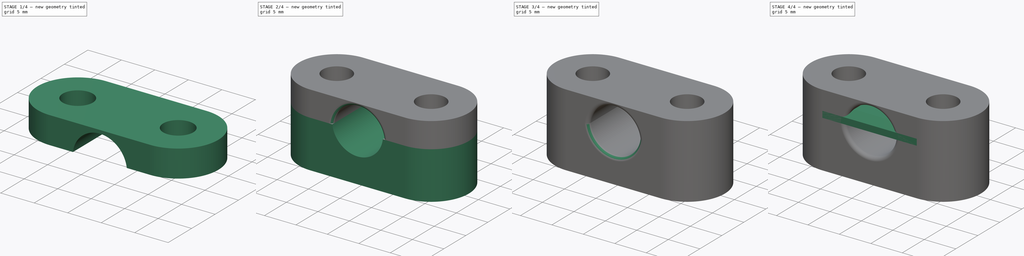
[diagram: build sequence overview — one tinted view per stage of 4, left to right]
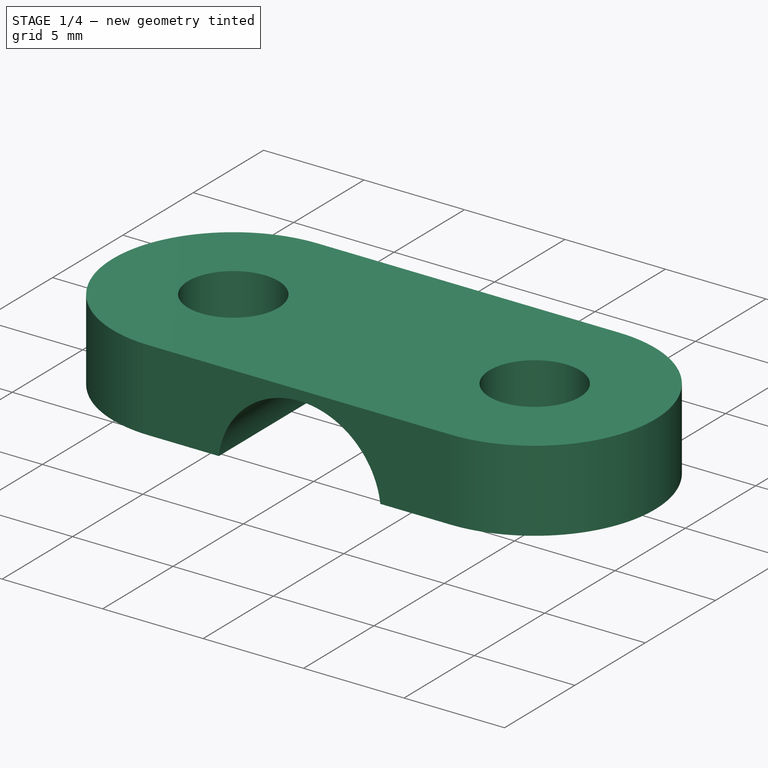
[diagram: stage 1 of 4 — iso view after this stage's code; geometry added in this stage tinted green]
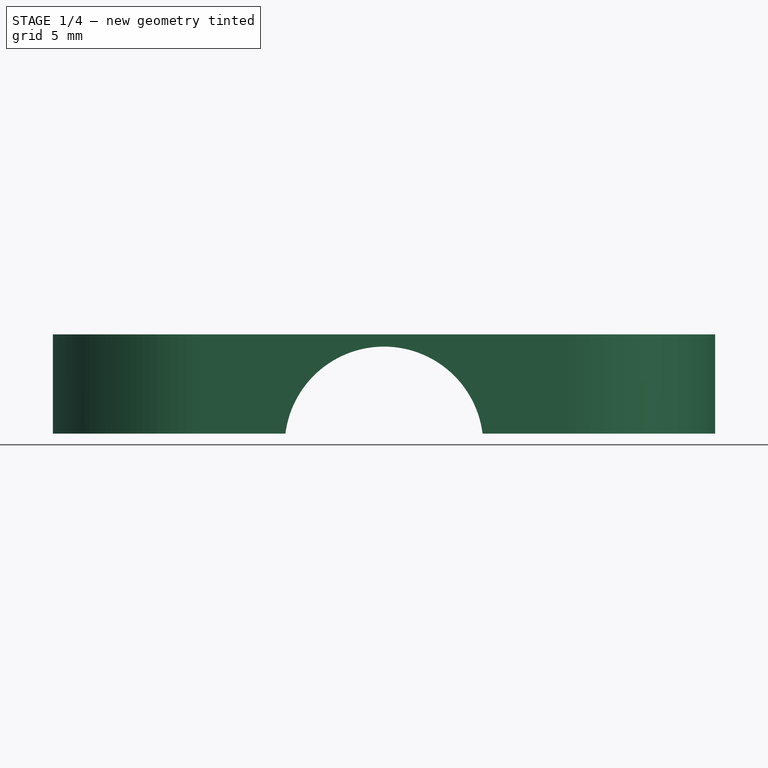
[diagram: stage 1 of 4 — front view after this stage's code; geometry added in this stage tinted green]
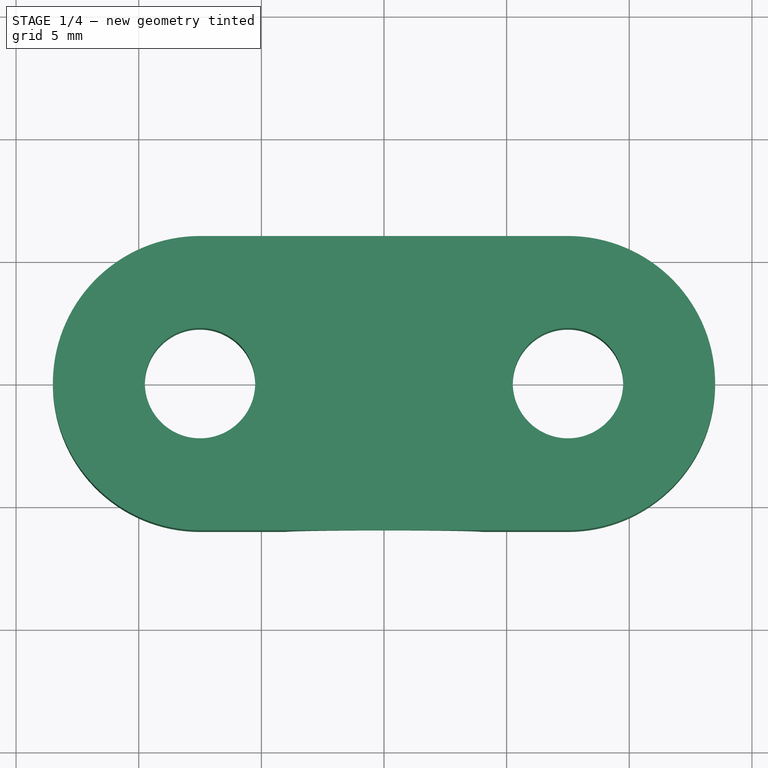
[diagram: stage 1 of 4 — top view after this stage's code; geometry added in this stage tinted green]
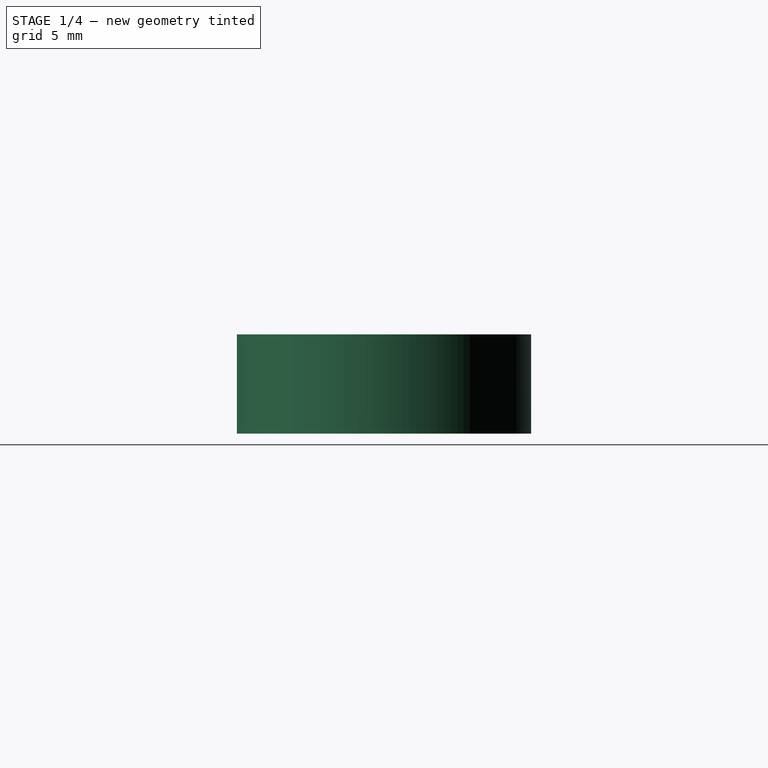
[diagram: stage 1 of 4 — right view after this stage's code; geometry added in this stage tinted green]
FCSTD DOCUMENT  (FreeCAD 0.20R29410 (Git))
Label: Rack Bolt Mount
License: All rights reserved
LicenseURL: http://en.wikipedia.org/wiki/All_rights_reserved
objects: Sketcher::SketchObject×9, PartDesign::Pad×3, PartDesign::Hole×3, PartDesign::Pocket×3, PartDesign::Body×3, Spreadsheet::Sheet×2, PartDesign::Fillet×2, PartDesign::Chamfer×1, App::MeasureDistance×1
note: 36 computed .brp shape members not serialized (recipe doc carries the construction recipe); baked Part::Feature solids carry a one-line shape summary decoded from their .brp

FEATURE [Sketcher::SketchObject] Sketch002
  FullyConstrained = true
  MapMode = 5
  Support = -> [XY_Plane001]
  expr: Constraints[7] = <<dims>>.width
  expr: Constraints[8] = <<dims>>.bolt_spacing
  sketch-geometry (4):
    g0: ArcOfCircle CenterX=-7.5 CenterY=0 CenterZ=0 NormalX=0 NormalY=0 NormalZ=1 AngleXU=0 Radius=6 StartAngle=1.5708 EndAngle=4.71239
    g1: ArcOfCircle CenterX=7.5 CenterY=0 CenterZ=0 NormalX=0 NormalY=0 NormalZ=1 AngleXU=0 Radius=6 StartAngle=4.71239 EndAngle=7.85398
    g2: LineSegment StartX=-7.5 StartY=-6 StartZ=0 EndX=7.5 EndY=-6 EndZ=0
    g3: LineSegment StartX=7.5 StartY=6 StartZ=0 EndX=-7.5 EndY=6 EndZ=0
  constraints (9):
    c: Tangent(g0,g2) = -1.5708
    c: Tangent(g2,g1) = -1.5708
    c: Tangent(g1,g3) = -1.5708
    c: Tangent(g3,g0) = -1.5708
    c: Equal(g0,g1)
    c: PointOnObject(g0,g-1)
    c: Symmetric(g0,g1,g-2)
    c: DistanceY(g0,g0) = 12
    c: DistanceX(g3,g3) = 15
FEATURE [PartDesign::Pad] Pad001
  AlongSketchNormal = false
  Direction = (0,0,1)
  Length = 4.05
  Length2 = 100
  Profile = -> Sketch002
  Type = 0
  expr: Length = <<dims>>.tube_od / 2 + <<dims>>.middle__min_t - <<dims>>.clamp_gap / 2
FEATURE [Sketcher::SketchObject] Sketch003
  FullyConstrained = true
  MapMode = 5
  Placement = pos=(0,0,0) rot=(1,0,0;1.5708rad)
  Support = -> [XZ_Plane001]
  expr: Constraints[1] = -<<dims>>.clamp_gap / 2
  expr: Constraints[2] = <<dims>>.tube_od
  sketch-geometry (1):
    g0: Circle CenterX=0 CenterY=-0.5 CenterZ=0 NormalX=0 NormalY=0 NormalZ=1 AngleXU=0 Radius=4.05
  constraints (3):
    c: PointOnObject(g0,g-2)
    c: DistanceY(g0) = -0.5
    c: Diameter(g0) = 8.1
FEATURE [PartDesign::Pocket] Pocket
  BaseFeature = -> Pad001
  Direction = (1,1,1)
  Length = 5
  Length2 = 100
  Midplane = true
  Profile = -> Sketch003
  Type = 1
FEATURE [Sketcher::SketchObject] Sketch004
  FullyConstrained = false
  MapMode = 5
  Placement = pos=(0,0,4.05) rot=(0,0,1;0rad)
  Support = -> [Pocket]
  expr: Constraints[1] = <<dims>>.bolt_spacing
  sketch-geometry (2):
    g0: Circle CenterX=-7.5 CenterY=0 CenterZ=0 NormalX=0 NormalY=0 NormalZ=1 AngleXU=0 Radius=7.38141
    g1: Circle CenterX=7.5 CenterY=0 CenterZ=0 NormalX=0 NormalY=0 NormalZ=1 AngleXU=0 Radius=5.03095
  constraints (3):
    c: PointOnObject(g0,g-1)
    c: DistanceX(g0,g1) = 15
    c: Symmetric(g0,g1,g-2)
FEATURE [PartDesign::Hole] Hole001
  BaseFeature = -> Pocket
  CustomThreadClearance = 0
  Depth = 25
  DepthType = 0
  Diameter = 4.5
  DrillForDepth = false
  DrillPoint = 1
  DrillPointAngle = 118
  HoleCutCountersinkAngle = 90
  HoleCutCustomValues = false
  HoleCutDepth = 0
  HoleCutDiameter = 6.1
  HoleCutType = 0
  ModelThread = false
  Profile = -> Sketch004
  Tapered = false
  TaperedAngle = 90
  ThreadClass = 0
  ThreadDepth = 25
  ThreadDepthType = 0
  ThreadDirection = 0
  ThreadFit = 0
  ThreadSize = 11
  ThreadType = 1
  Threaded = false
  UseCustomThreadClearance = false
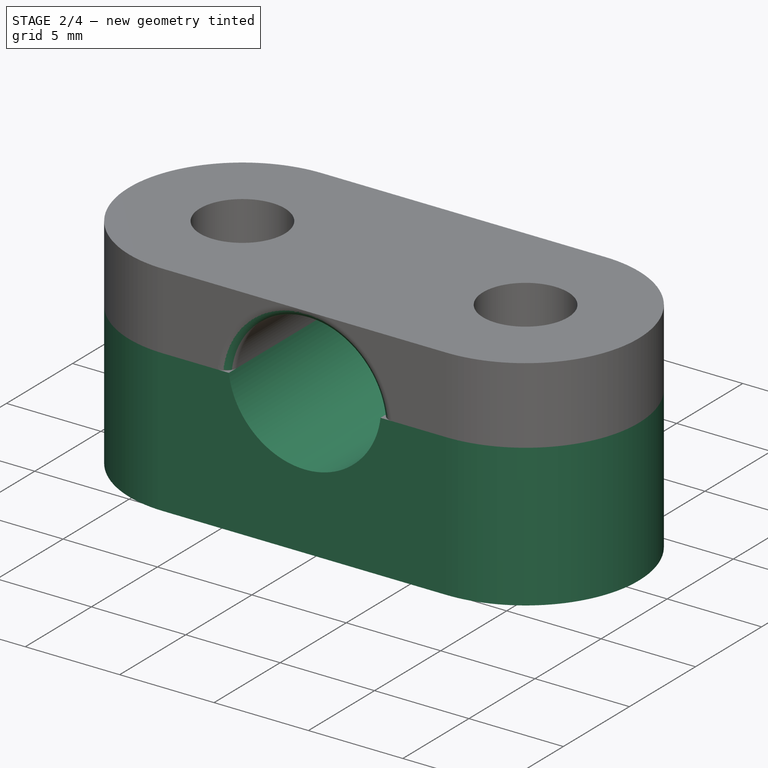
[diagram: stage 2 of 4 — iso view after this stage's code; geometry added in this stage tinted green]
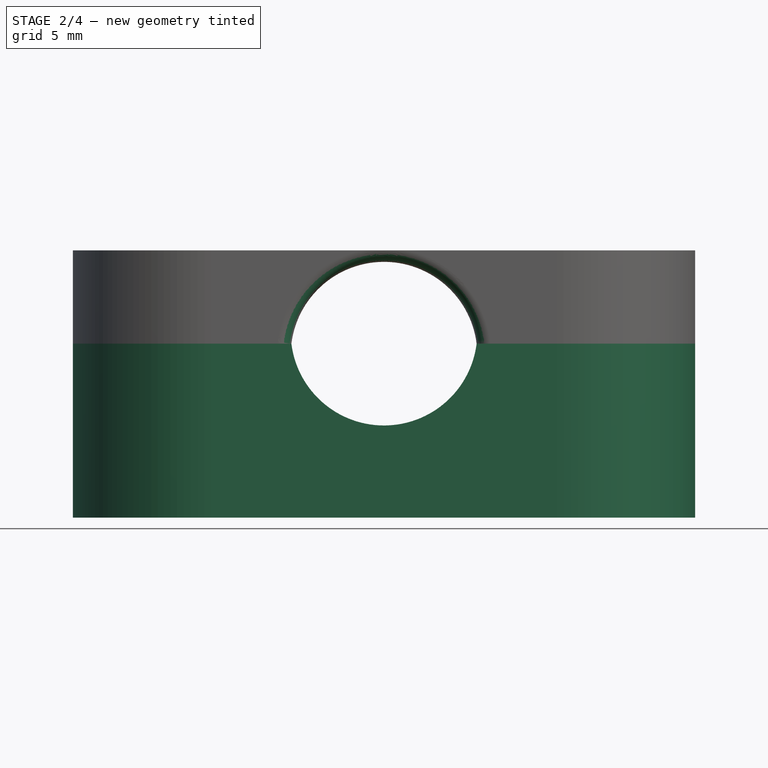
[diagram: stage 2 of 4 — front view after this stage's code; geometry added in this stage tinted green]
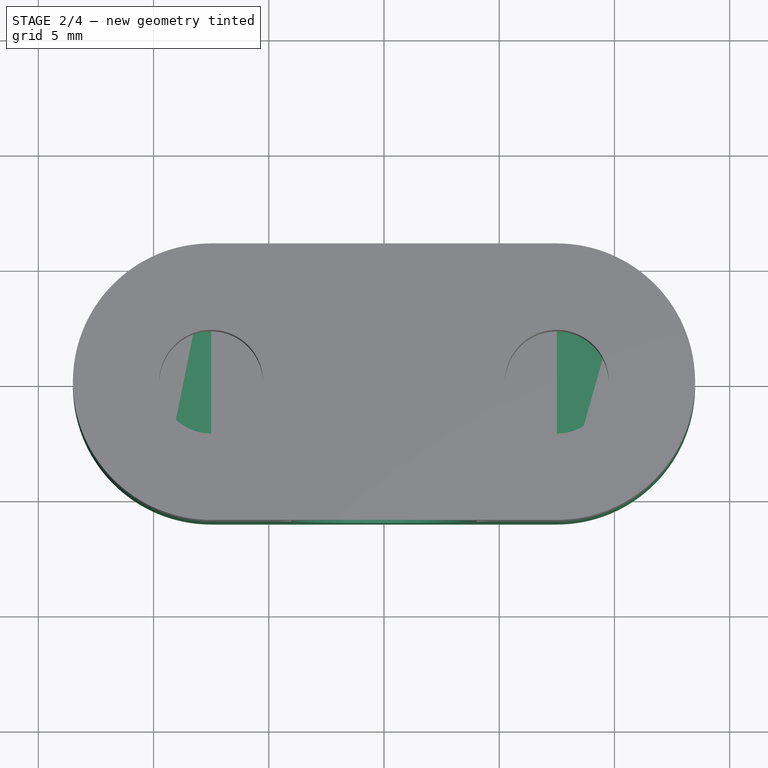
[diagram: stage 2 of 4 — top view after this stage's code; geometry added in this stage tinted green]
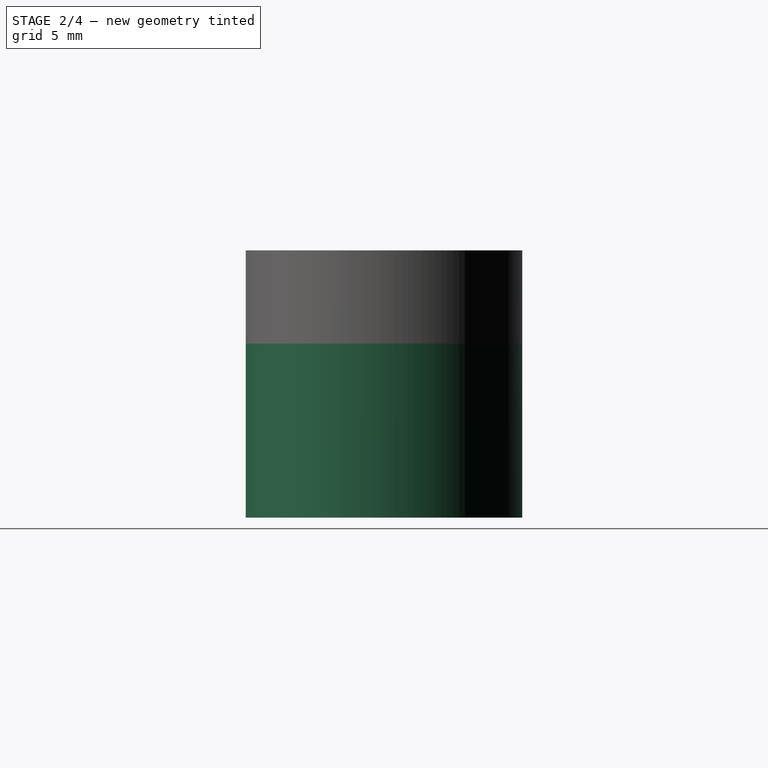
[diagram: stage 2 of 4 — right view after this stage's code; geometry added in this stage tinted green]
FEATURE [Sketcher::SketchObject] Sketch005
  FullyConstrained = true
  MapMode = 5
  Support = -> [XY_Plane002]
  expr: Constraints[7] = <<dims>>.width
  expr: Constraints[8] = <<dims>>.bolt_spacing
  sketch-geometry (4):
    g0: ArcOfCircle CenterX=-7.5 CenterY=0 CenterZ=0 NormalX=0 NormalY=0 NormalZ=1 AngleXU=0 Radius=6 StartAngle=1.5708 EndAngle=4.71239
    g1: ArcOfCircle CenterX=7.5 CenterY=0 CenterZ=0 NormalX=0 NormalY=0 NormalZ=1 AngleXU=0 Radius=6 StartAngle=4.71239 EndAngle=7.85398
    g2: LineSegment StartX=-7.5 StartY=-6 StartZ=0 EndX=7.5 EndY=-6 EndZ=0
    g3: LineSegment StartX=7.5 StartY=6 StartZ=0 EndX=-7.5 EndY=6 EndZ=0
  constraints (9):
    c: Tangent(g0,g2) = -1.5708
    c: Tangent(g2,g1) = -1.5708
    c: Tangent(g1,g3) = -1.5708
    c: Tangent(g3,g0) = -1.5708
    c: Equal(g0,g1)
    c: PointOnObject(g0,g-1)
    c: Symmetric(g0,g1,g-2)
    c: DistanceY(g0,g0) = 12
    c: DistanceX(g3,g3) = 15
FEATURE [PartDesign::Pad] Pad002
  AlongSketchNormal = false
  Direction = (0,0,1)
  Length = 7.55
  Length2 = 100
  Profile = -> Sketch005
  Reversed = true
  Type = 0
  expr: Length = <<dims>>.tube_od / 2 + <<dims>>.lowest__min_t - <<dims>>.clamp_gap / 2
FEATURE [Sketcher::SketchObject] Sketch006
  FullyConstrained = true
  MapMode = 5
  Placement = pos=(0,0,0) rot=(1,0,0;1.5708rad)
  Support = -> [XZ_Plane002]
  expr: Constraints[1] = <<dims>>.clamp_gap / 2
  expr: Constraints[2] = <<dims>>.tube_od
  sketch-geometry (1):
    g0: Circle CenterX=0 CenterY=0.5 CenterZ=0 NormalX=0 NormalY=0 NormalZ=1 AngleXU=0 Radius=4.05
  constraints (3):
    c: PointOnObject(g0,g-2)
    c: DistanceY(g0) = 0.5
    c: Diameter(g0) = 8.1
FEATURE [PartDesign::Pocket] Pocket001
  BaseFeature = -> Pad002
  Direction = (1,1,1)
  Length = 5
  Length2 = 100
  Midplane = true
  Profile = -> Sketch006
  Type = 1
FEATURE [PartDesign::Body] Body002  label="Lower"
  Group = -> [Sketch005,Pad002,Sketch006,Pocket001,Sketch007,Hole002,Sketch008,Pocket002,Fillet]
  Origin = -> Origin002
  Placement = pos=(0,0,-0.5) rot=(0,0,1;0rad)
  Tip = -> Fillet
  expr: .Placement.Base.z = <<dims>>.clamp_gap / 2 * -1
FEATURE [PartDesign::Fillet] Fillet001
  Base = -> Hole001 [Edge6,Edge11]
  BaseFeature = -> Hole001
  Radius = 0.6
  SupportTransform = false
  UseAllEdges = false
FEATURE [PartDesign::Body] Body001  label="Middle"
  Group = -> [Sketch002,Pad001,Sketch003,Pocket,Sketch004,Hole001,Fillet001]
  Origin = -> Origin001
  Placement = pos=(0,0,0.5) rot=(0,0,1;0rad)
  Tip = -> Fillet001
  expr: .Placement.Base.z = <<dims>>.clamp_gap / 2
FEATURE [App::MeasureDistance] Distance  label="Distance: 17.60 mm"
  Distance = 17.6009
  P1 = (-7.45451,-5.10935,9.52815)
  P2 = (-7.37467,-6,-8.05)
FEATURE [Spreadsheet::Sheet] _PARTINFO_  label="#PARTINFO#"
  cells = A1=IDENTNO; A2=DESCRIPTION; B2=Rack Bolt Mount; A3=SUPPLIER; A4=SUPP.IDENTNO; A5=SUPP.DESCRIPTION; A6=(FILENAME)
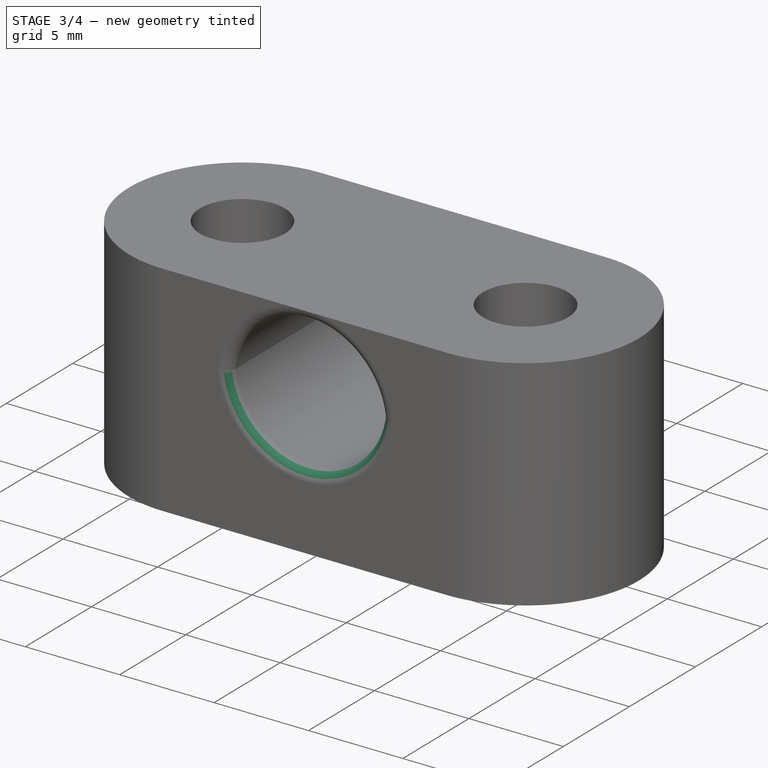
[diagram: stage 3 of 4 — iso view after this stage's code; geometry added in this stage tinted green]
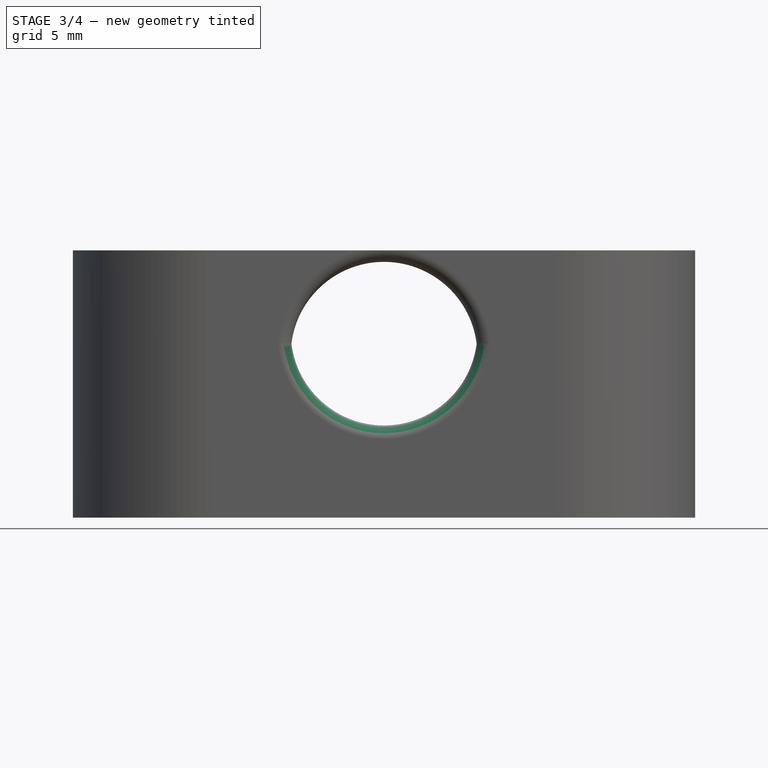
[diagram: stage 3 of 4 — front view after this stage's code; geometry added in this stage tinted green]
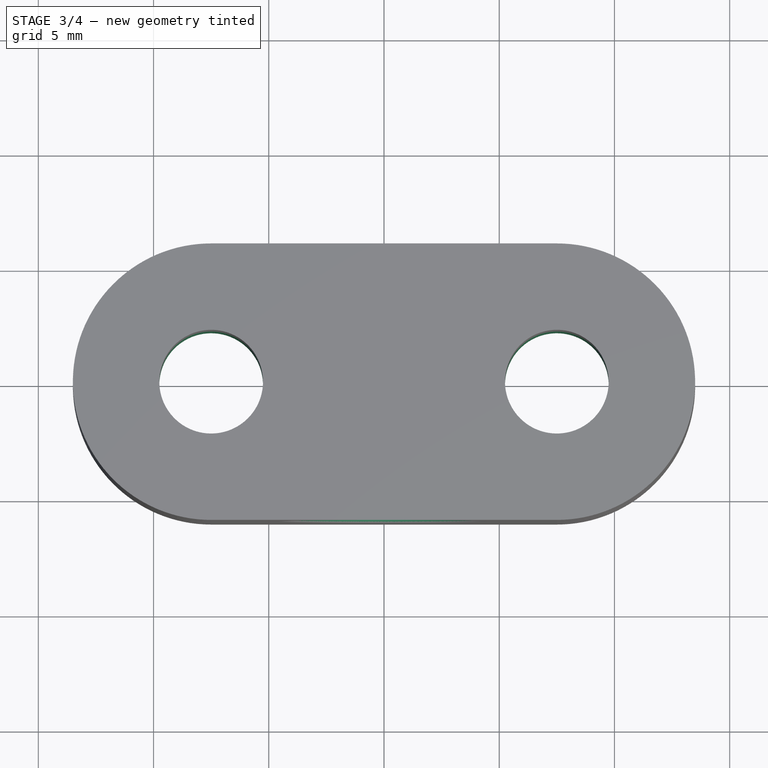
[diagram: stage 3 of 4 — top view after this stage's code; geometry added in this stage tinted green]
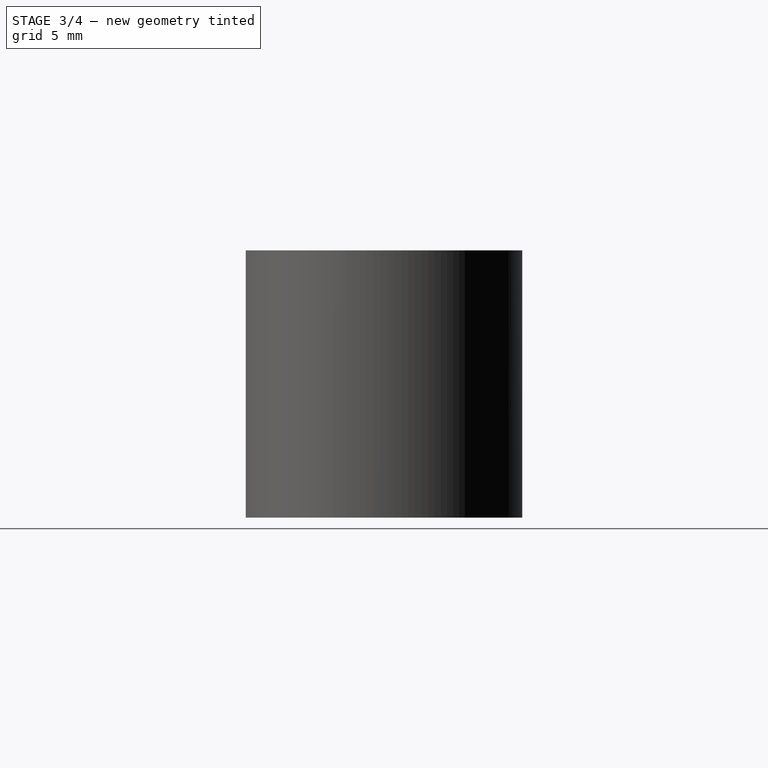
[diagram: stage 3 of 4 — right view after this stage's code; geometry added in this stage tinted green]
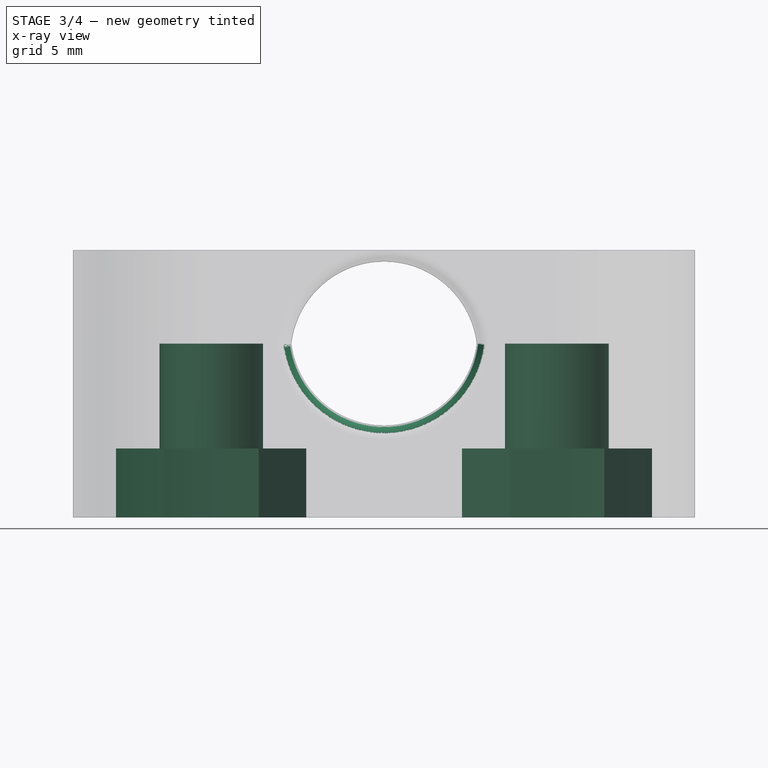
[diagram: stage 3 of 4 — x-ray composite at the front view; earlier geometry ghosted, this stage's added geometry solid]
FEATURE [Sketcher::SketchObject] Sketch007
  FullyConstrained = false
  MapMode = 5
  Placement = pos=(0,0,-7.55) rot=(1,0,0;3.14159rad)
  Support = -> [Pocket001]
  expr: Constraints[1] = <<dims>>.bolt_spacing
  sketch-geometry (2):
    g0: Circle CenterX=-7.5 CenterY=0 CenterZ=0 NormalX=0 NormalY=0 NormalZ=1 AngleXU=0 Radius=7.38141
    g1: Circle CenterX=7.5 CenterY=0 CenterZ=0 NormalX=0 NormalY=0 NormalZ=1 AngleXU=0 Radius=5.03095
  constraints (3):
    c: PointOnObject(g0,g-1)
    c: DistanceX(g0,g1) = 15
    c: Symmetric(g0,g1,g-2)
FEATURE [PartDesign::Hole] Hole002
  BaseFeature = -> Pocket001
  CustomThreadClearance = 0
  Depth = 25
  DepthType = 0
  Diameter = 4.5
  DrillForDepth = false
  DrillPoint = 1
  DrillPointAngle = 118
  HoleCutCountersinkAngle = 90
  HoleCutCustomValues = false
  HoleCutDepth = 0
  HoleCutDiameter = 6.1
  HoleCutType = 0
  ModelThread = false
  Profile = -> Sketch007
  Tapered = false
  TaperedAngle = 90
  ThreadClass = 0
  ThreadDepth = 25
  ThreadDepthType = 0
  ThreadDirection = 0
  ThreadFit = 0
  ThreadSize = 11
  ThreadType = 1
  Threaded = false
  UseCustomThreadClearance = false
FEATURE [Sketcher::SketchObject] Sketch008
  FullyConstrained = true
  MapMode = 5
  Placement = pos=(0,0,-7.55) rot=(1,0,0;3.14159rad)
  Support = -> [Hole002]
  expr: Constraints[36] = <<dims>>.bolt_spacing
  expr: Constraints[40] = <<dims>>.hex_width
  sketch-geometry (14):
    g0: LineSegment StartX=-5.43597 StartY=-3.575 StartZ=0 EndX=-3.37195 EndY=-2.4389e-12 EndZ=0
    g1: LineSegment StartX=-3.37195 StartY=-2.4387e-12 StartZ=0 EndX=-5.43597 EndY=3.575 EndZ=0
    g2: LineSegment StartX=-5.43597 StartY=3.575 StartZ=0 EndX=-9.56403 EndY=3.575 EndZ=0
    g3: LineSegment StartX=-9.56403 StartY=3.575 StartZ=0 EndX=-11.6281 EndY=8.114e-13 EndZ=0
    g4: LineSegment StartX=-11.6281 StartY=8.116e-13 StartZ=0 EndX=-9.56403 EndY=-3.575 EndZ=0
    g5: LineSegment StartX=-9.56403 StartY=-3.575 StartZ=0 EndX=-5.43597 EndY=-3.575 EndZ=0
    g6: Circle CenterX=-7.5 CenterY=0 CenterZ=0 NormalX=0 NormalY=0 NormalZ=1 AngleXU=0 Radius=4.12805
    g7: LineSegment StartX=9.56403 StartY=-3.575 StartZ=0 EndX=11.6281 EndY=-2.5007e-12 EndZ=0
    g8: LineSegment StartX=11.6281 StartY=-2.5006e-12 StartZ=0 EndX=9.56403 EndY=3.575 EndZ=0
    g9: LineSegment StartX=9.56403 StartY=3.575 StartZ=0 EndX=5.43597 EndY=3.575 EndZ=0
    g10: LineSegment StartX=5.43597 StartY=3.575 StartZ=0 EndX=3.37195 EndY=8.336e-13 EndZ=0
    g11: LineSegment StartX=3.37195 StartY=8.336e-13 StartZ=0 EndX=5.43597 EndY=-3.575 EndZ=0
    g12: LineSegment StartX=5.43597 StartY=-3.575 StartZ=0 EndX=9.56403 EndY=-3.575 EndZ=0
    g13: Circle CenterX=7.5 CenterY=0 CenterZ=0 NormalX=0 NormalY=0 NormalZ=1 AngleXU=0 Radius=4.12805
  constraints (33):
    c: Coincident(g0,g1)
    c: Coincident(g1,g2)
    c: Coincident(g2,g3)
    c: Coincident(g3,g4)
    c: Coincident(g4,g5)
    c: Coincident(g5,g0)
    c: Equal(g0, g1-g5) x5
    c: PointOnObject(g0,g6)
    c: PointOnObject(g1,g6)
    c: PointOnObject(g2,g6)
    c: PointOnObject(g3,g6)
    c: PointOnObject(g4,g6)
    c: PointOnObject(g5,g6)
    c: PointOnObject(g6,g-1)
    c: Coincident(g7,g8)
    c: Coincident(g8,g9)
    c: Coincident(g9,g10)
    c: Coincident(g10,g11)
    c: Coincident(g11,g12)
    c: Coincident(g12,g7)
    c: Equal(g7, g8-g12) x5
    c: PointOnObject(g7,g13)
    c: PointOnObject(g8,g13)
    c: PointOnObject(g9,g13)
    c: PointOnObject(g10,g13)
    c: PointOnObject(g11,g13)
    c: PointOnObject(g12,g13)
    c: Symmetric(g6,g13,g-2)
    c: DistanceX(g6,g13) = 15
    c: Horizontal(g2)
    c: Horizontal(g9)
    c: Equal(g13,g6)
    c: DistanceY(g4,g2) = 7.15
FEATURE [PartDesign::Pocket] Pocket002
  BaseFeature = -> Hole002
  Direction = (1,1,1)
  Length = 3
  Length2 = 100
  Profile = -> Sketch008
  Type = 0
  expr: Length = <<dims>>.hex_depth
FEATURE [PartDesign::Body] Body  label="Top"
  Group = -> [Sketch,Pad,Sketch001,Hole,Chamfer]
  Origin = -> Origin
  Placement = pos=(0,0,6.1375) rot=(0,0,1;0rad)
  Tip = -> Chamfer
  expr: .Placement.Base.z = <<dims>>.tube_od / 2 + <<dims>>.middle__min_t + <<dims>>.panel_t
FEATURE [PartDesign::Fillet] Fillet
  Base = -> Pocket002 [Edge6,Edge11]
  BaseFeature = -> Pocket002
  Radius = 0.6
  SupportTransform = false
  UseAllEdges = false
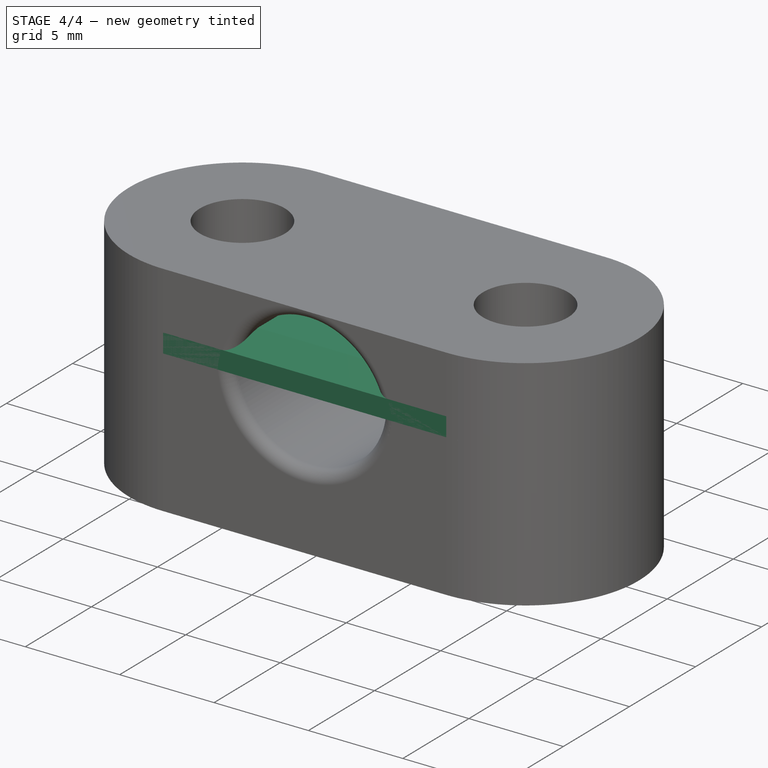
[diagram: stage 4 of 4 — iso view after this stage's code; geometry added in this stage tinted green]
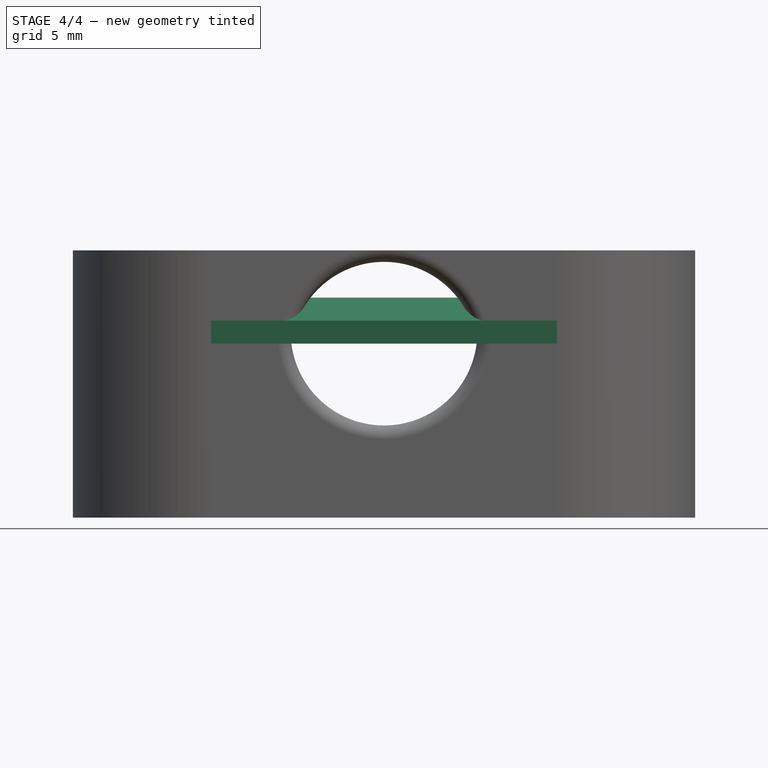
[diagram: stage 4 of 4 — front view after this stage's code; geometry added in this stage tinted green]
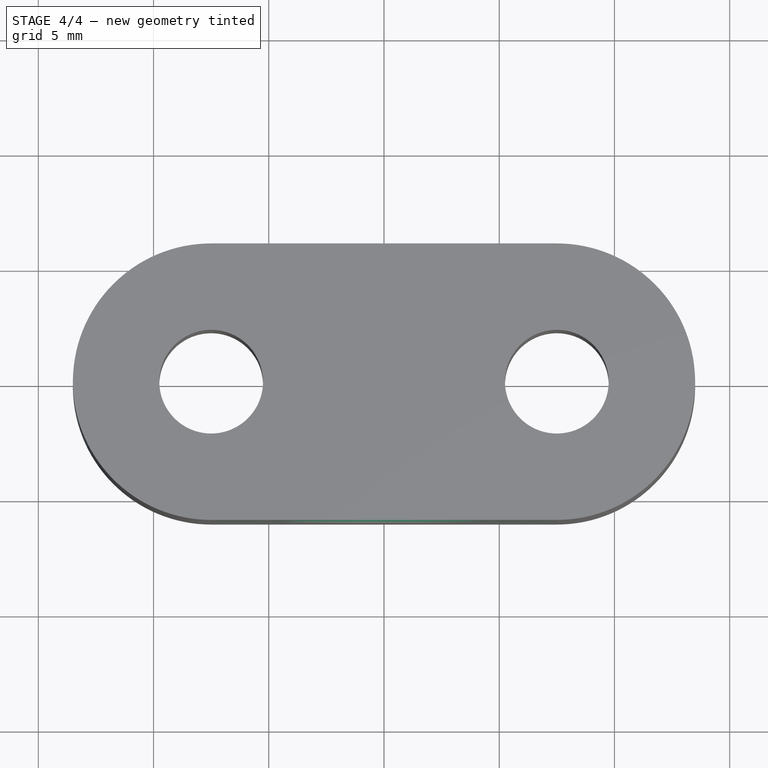
[diagram: stage 4 of 4 — top view after this stage's code; geometry added in this stage tinted green]
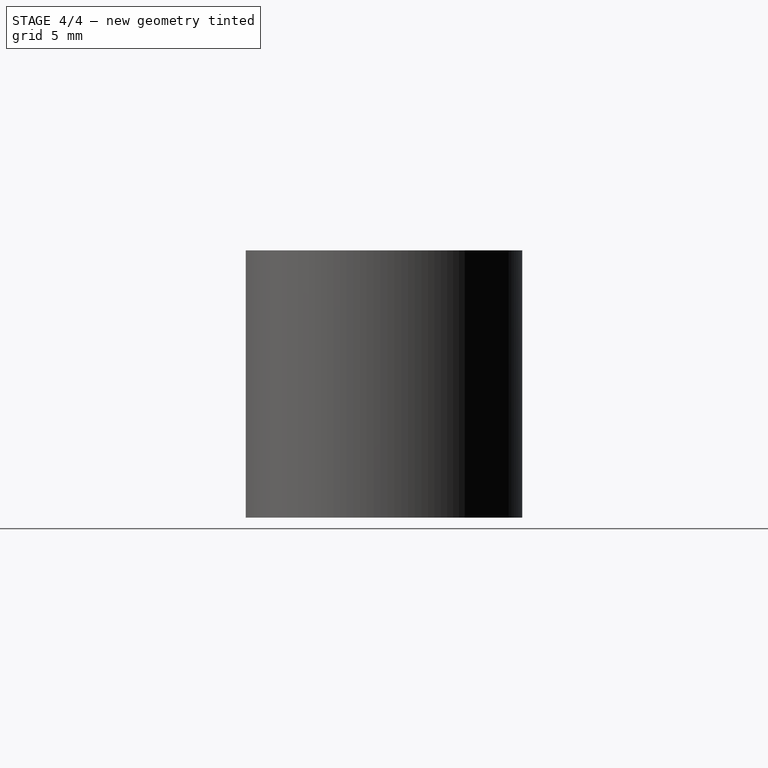
[diagram: stage 4 of 4 — right view after this stage's code; geometry added in this stage tinted green]
FEATURE [Spreadsheet::Sheet] Spreadsheet  label="dims"
  cells = A1=tube_od; B1(tube_od)=8.1; A2=panel_t; B2(panel_t)==1 / 16 * 25.4; A3=clamp_gap; B3(clamp_gap)=1; A4=width; B4(width)=12; A5=lowest__min_t; B5(lowest__min_t)=4; A6=middle__min_t; B6(middle__min_t)=0.5; A7=top_t; B7(top_t)=2; A8=hex_width; B8(hex_width)=7.15; A9=hex_depth; B9(hex_depth)=3; A10=bolt_diam; B10(bolt_diam)=4; A11=bolt_spacing; B11(bolt_spacing)==ceil(.bolt_diam + .tube_od + 2 * .bolt_tube_wall); A12=bolt_tube_wall; B12(bolt_tube_wall)=1
FEATURE [Sketcher::SketchObject] Sketch
  FullyConstrained = true
  MapMode = 5
  Support = -> [XY_Plane]
  expr: Constraints[7] = <<dims>>.width
  expr: Constraints[8] = <<dims>>.bolt_spacing
  sketch-geometry (4):
    g0: ArcOfCircle CenterX=-7.5 CenterY=0 CenterZ=0 NormalX=0 NormalY=0 NormalZ=1 AngleXU=0 Radius=6 StartAngle=1.5708 EndAngle=4.71239
    g1: ArcOfCircle CenterX=7.5 CenterY=0 CenterZ=0 NormalX=0 NormalY=0 NormalZ=1 AngleXU=0 Radius=6 StartAngle=4.71239 EndAngle=7.85398
    g2: LineSegment StartX=-7.5 StartY=-6 StartZ=0 EndX=7.5 EndY=-6 EndZ=0
    g3: LineSegment StartX=7.5 StartY=6 StartZ=0 EndX=-7.5 EndY=6 EndZ=0
  constraints (9):
    c: Tangent(g0,g2) = -1.5708
    c: Tangent(g2,g1) = -1.5708
    c: Tangent(g1,g3) = -1.5708
    c: Tangent(g3,g0) = -1.5708
    c: Equal(g0,g1)
    c: PointOnObject(g0,g-1)
    c: Symmetric(g0,g1,g-2)
    c: DistanceY(g1,g1) = 12
    c: DistanceX(g3,g3) = 15
FEATURE [PartDesign::Pad] Pad
  AlongSketchNormal = false
  Direction = (0,0,1)
  Length = 2
  Length2 = 100
  Profile = -> Sketch
  Type = 0
  expr: Length = <<dims>>.top_t
FEATURE [Sketcher::SketchObject] Sketch001
  FullyConstrained = false
  MapMode = 5
  Placement = pos=(0,0,2) rot=(0,0,1;0rad)
  Support = -> [Pad]
  expr: Constraints[2] = <<dims>>.bolt_spacing
  sketch-geometry (2):
    g0: Circle CenterX=7.5 CenterY=0 CenterZ=0 NormalX=0 NormalY=0 NormalZ=1 AngleXU=0 Radius=4.73946
    g1: Circle CenterX=-7.5 CenterY=0 CenterZ=0 NormalX=0 NormalY=0 NormalZ=1 AngleXU=0 Radius=2.48945
  constraints (3):
    c: PointOnObject(g0,g-1)
    c: Symmetric(g1,g0,g-2)
    c: DistanceX(g1,g0) = 15
FEATURE [PartDesign::Hole] Hole
  BaseFeature = -> Pad
  CustomThreadClearance = 0
  Depth = 25
  DepthType = 0
  Diameter = 4.5
  DrillForDepth = false
  DrillPoint = 1
  DrillPointAngle = 118
  HoleCutCountersinkAngle = 90
  HoleCutCustomValues = false
  HoleCutDepth = 0
  HoleCutDiameter = 6.1
  HoleCutType = 0
  ModelThread = false
  Profile = -> Sketch001
  Tapered = false
  TaperedAngle = 90
  ThreadClass = 0
  ThreadDepth = 25
  ThreadDepthType = 0
  ThreadDirection = 0
  ThreadFit = 0
  ThreadSize = 11
  ThreadType = 1
  Threaded = false
  UseCustomThreadClearance = false
FEATURE [PartDesign::Chamfer] Chamfer
  Angle = 45
  Base = -> Hole [Edge10]
  BaseFeature = -> Hole
  ChamferType = 0
  FlipDirection = false
  Size = 1
  Size2 = 1
  SupportTransform = false
  UseAllEdges = false
  expr: Size = <<dims>>.top_t / 2
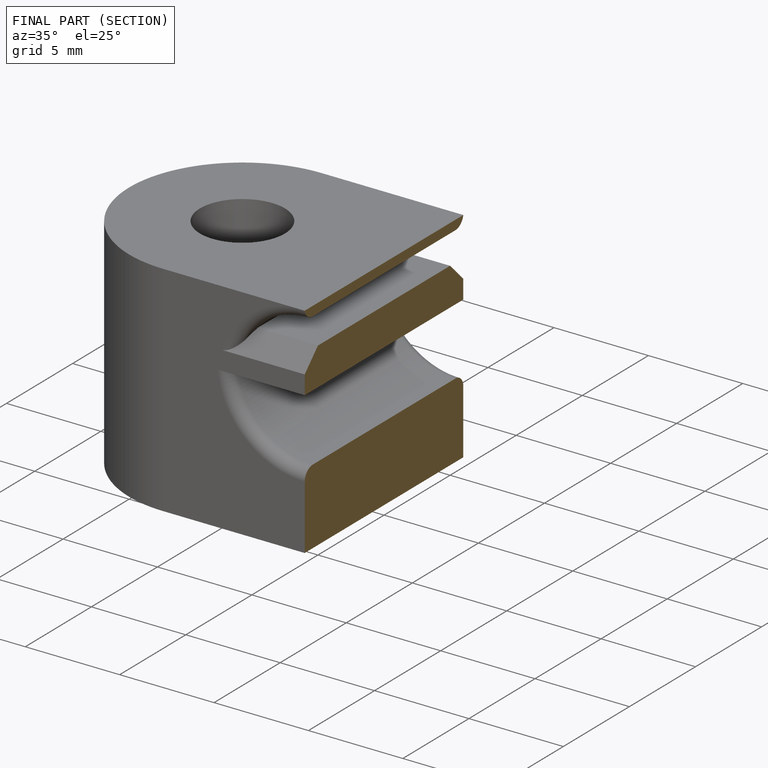
[diagram: finished part — half-section view (interior)]
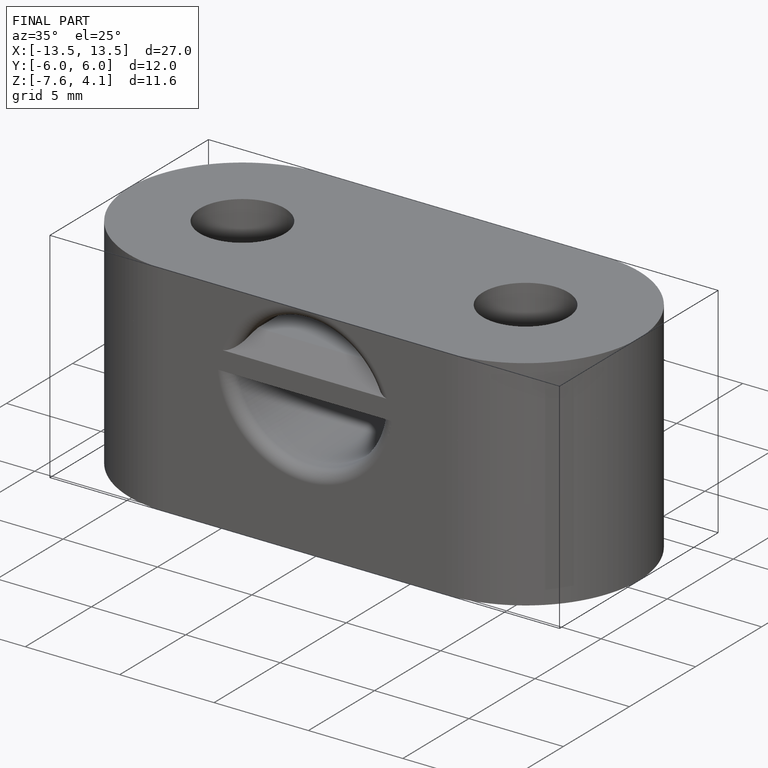
[diagram: finished part — iso view with bounding-box wireframe]
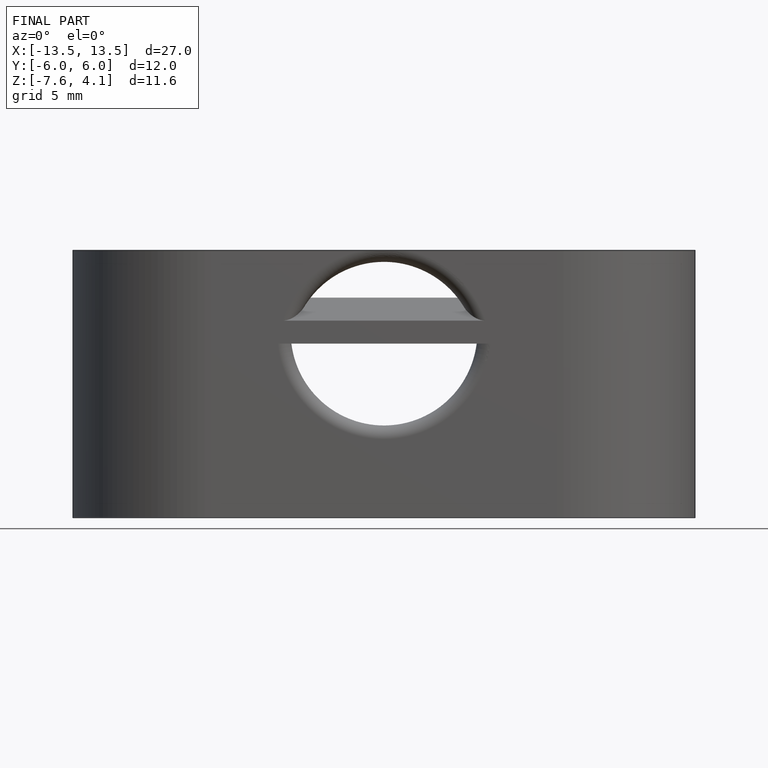
[diagram: finished part — front view with bounding-box wireframe]
